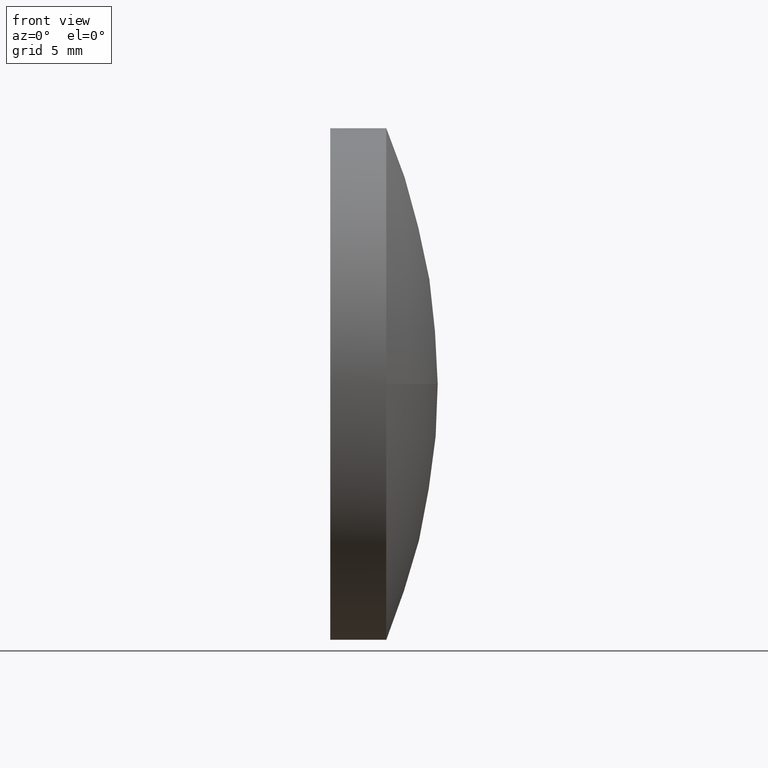
[diagram: clean part render]
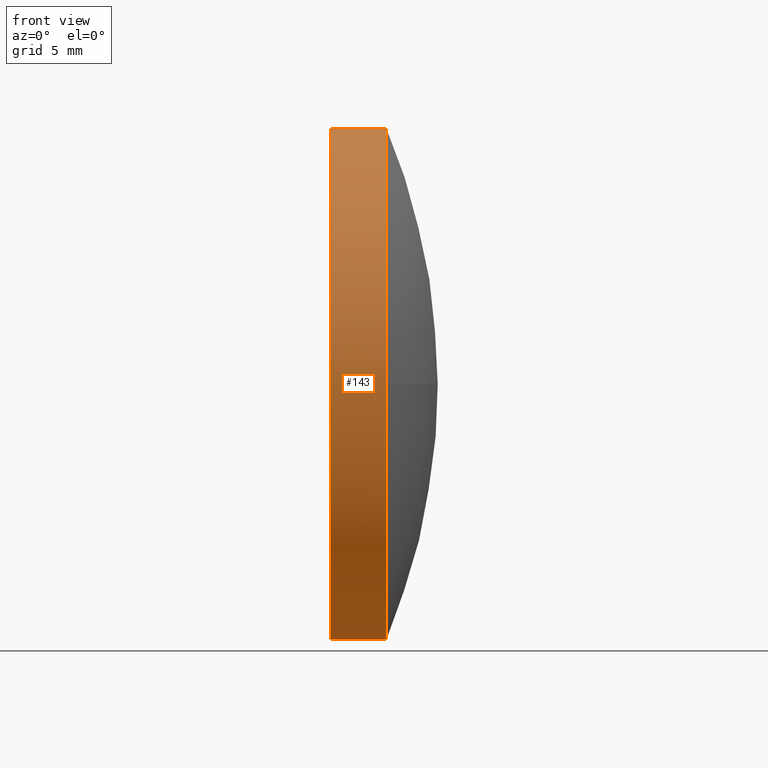
[diagram: same view with one face highlighted and labeled with its STEP entity id]
A machine part, front view. The second image highlights one B-rep face of the part: STEP entity #143.
In plain terms, the highlighted cylindrical surface (partial cylindrical patch) has radius 10 mm, axis along (-1, -0, -0).
Its self-contained STEP definition (entity closure, byte-faithful):
#2 = CYLINDRICAL_SURFACE ( 'NONE', #41, 9.999999999999998200 ) ;
#3 = AXIS2_PLACEMENT_3D ( 'NONE', #147, #178, #42 ) ;
#7 = CARTESIAN_POINT ( 'NONE',  ( 396.6972880556904800, 21.54680395939442400, -9.999999999999998200 ) ) ;
#20 = CARTESIAN_POINT ( 'NONE',  ( 396.6972880556904800, 21.54680395939442400, 9.999999999999998200 ) ) ;
#22 = CARTESIAN_POINT ( 'NONE',  ( 407.0037183694385000, 21.54680395939442400, 9.999999999999998200 ) ) ;
#31 = LINE ( 'NONE', #7, #68 ) ;
#34 = CIRCLE ( 'NONE', #57, 9.999999999999998200 ) ;
#41 = AXIS2_PLACEMENT_3D ( 'NONE', #76, #103, #95 ) ;
#42 = DIRECTION ( 'NONE',  ( 0.0000000000000000000, 0.0000000000000000000, 1.000000000000000000 ) ) ;
#44 = DIRECTION ( 'NONE',  ( -1.000000000000000000, -0.0000000000000000000, -0.0000000000000000000 ) ) ;
#50 = CARTESIAN_POINT ( 'NONE',  ( 407.0037183694385000, 21.54680395939442400, 0.0000000000000000000 ) ) ;
#51 = ORIENTED_EDGE ( 'NONE', *, *, #111, .F. ) ;
#53 = VERTEX_POINT ( 'NONE', #55 ) ;
#55 = CARTESIAN_POINT ( 'NONE',  ( 407.0037183694385000, 11.54680395939439600, -1.224646799147353700E-015 ) ) ;
#56 = CIRCLE ( 'NONE', #3, 9.999999999999998200 ) ;
#57 = AXIS2_PLACEMENT_3D ( 'NONE', #77, #44, #78 ) ;
#59 = FACE_OUTER_BOUND ( 'NONE', #168, .T. ) ;
#60 = ORIENTED_EDGE ( 'NONE', *, *, #71, .F. ) ;
#61 = DIRECTION ( 'NONE',  ( -1.000000000000000000, -0.0000000000000000000, -0.0000000000000000000 ) ) ;
#65 = DIRECTION ( 'NONE',  ( -1.000000000000000000, -0.0000000000000000000, -0.0000000000000000000 ) ) ;
#67 = AXIS2_PLACEMENT_3D ( 'NONE', #50, #65, #165 ) ;
#68 = VECTOR ( 'NONE', #61, 1000.000000000000000 ) ;
#71 = EDGE_CURVE ( 'NONE', #82, #123, #56, .T. ) ;
#73 = CARTESIAN_POINT ( 'NONE',  ( 404.8137183694385000, 21.54680395939442400, -9.999999999999998200 ) ) ;
#76 = CARTESIAN_POINT ( 'NONE',  ( 396.6972880556904800, 21.54680395939442400, 0.0000000000000000000 ) ) ;
#77 = CARTESIAN_POINT ( 'NONE',  ( 407.0037183694385000, 21.54680395939442400, 0.0000000000000000000 ) ) ;
#78 = DIRECTION ( 'NONE',  ( 0.0000000000000000000, 0.0000000000000000000, 1.000000000000000000 ) ) ;
#82 = VERTEX_POINT ( 'NONE', #73 ) ;
#95 = DIRECTION ( 'NONE',  ( 0.0000000000000000000, 0.0000000000000000000, 1.000000000000000000 ) ) ;
#98 = VERTEX_POINT ( 'NONE', #22 ) ;
#101 = VECTOR ( 'NONE', #116, 1000.000000000000000 ) ;
#103 = DIRECTION ( 'NONE',  ( -1.000000000000000000, -0.0000000000000000000, -0.0000000000000000000 ) ) ;
#111 = EDGE_CURVE ( 'NONE', #142, #82, #31, .T. ) ;
#116 = DIRECTION ( 'NONE',  ( -1.000000000000000000, -0.0000000000000000000, -0.0000000000000000000 ) ) ;
#120 = ORIENTED_EDGE ( 'NONE', *, *, #122, .T. ) ;
#122 = EDGE_CURVE ( 'NONE', #142, #53, #34, .T. ) ;
#123 = VERTEX_POINT ( 'NONE', #180 ) ;
#134 = CIRCLE ( 'NONE', #67, 9.999999999999998200 ) ;
#136 = ORIENTED_EDGE ( 'NONE', *, *, #172, .T. ) ;
#142 = VERTEX_POINT ( 'NONE', #149 ) ;
#143 = ADVANCED_FACE ( 'NONE', ( #59 ), #2, .T. ) ;
#147 = CARTESIAN_POINT ( 'NONE',  ( 404.8137183694385000, 21.54680395939442400, 0.0000000000000000000 ) ) ;
#149 = CARTESIAN_POINT ( 'NONE',  ( 407.0037183694385000, 21.54680395939442400, -9.999999999999998200 ) ) ;
#158 = EDGE_CURVE ( 'NONE', #98, #123, #185, .T. ) ;
#160 = ORIENTED_EDGE ( 'NONE', *, *, #158, .T. ) ;
#165 = DIRECTION ( 'NONE',  ( 0.0000000000000000000, 0.0000000000000000000, 1.000000000000000000 ) ) ;
#168 = EDGE_LOOP ( 'NONE', ( #51, #120, #136, #160, #60 ) ) ;
#172 = EDGE_CURVE ( 'NONE', #53, #98, #134, .T. ) ;
#178 = DIRECTION ( 'NONE',  ( -1.000000000000000000, -0.0000000000000000000, -0.0000000000000000000 ) ) ;
#180 = CARTESIAN_POINT ( 'NONE',  ( 404.8137183694385000, 21.54680395939442400, 9.999999999999998200 ) ) ;
#185 = LINE ( 'NONE', #20, #101 ) ;